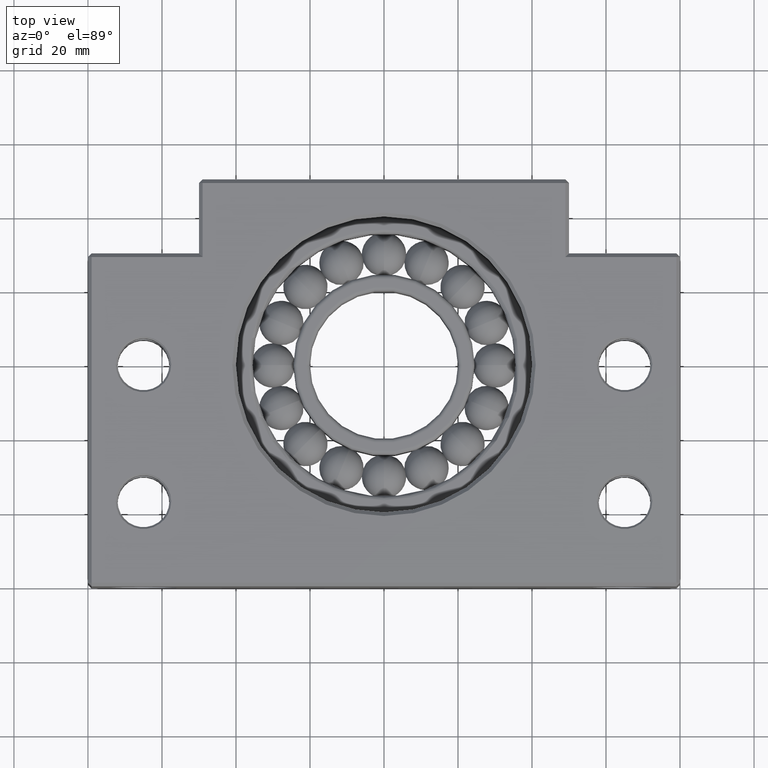
[diagram: clean part render]
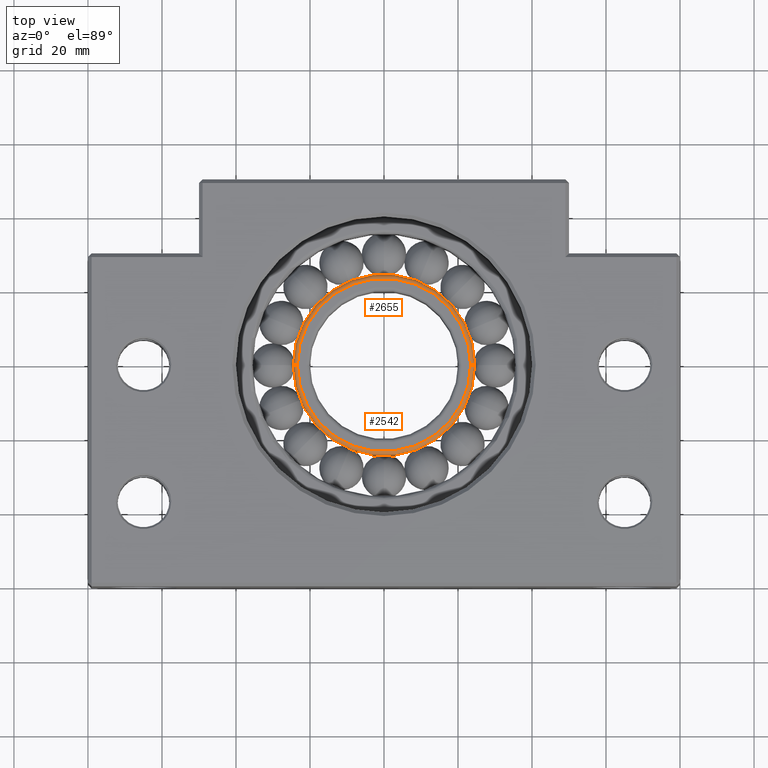
[diagram: same view with one multi-face feature highlighted, each face labeled with its STEP entity id]
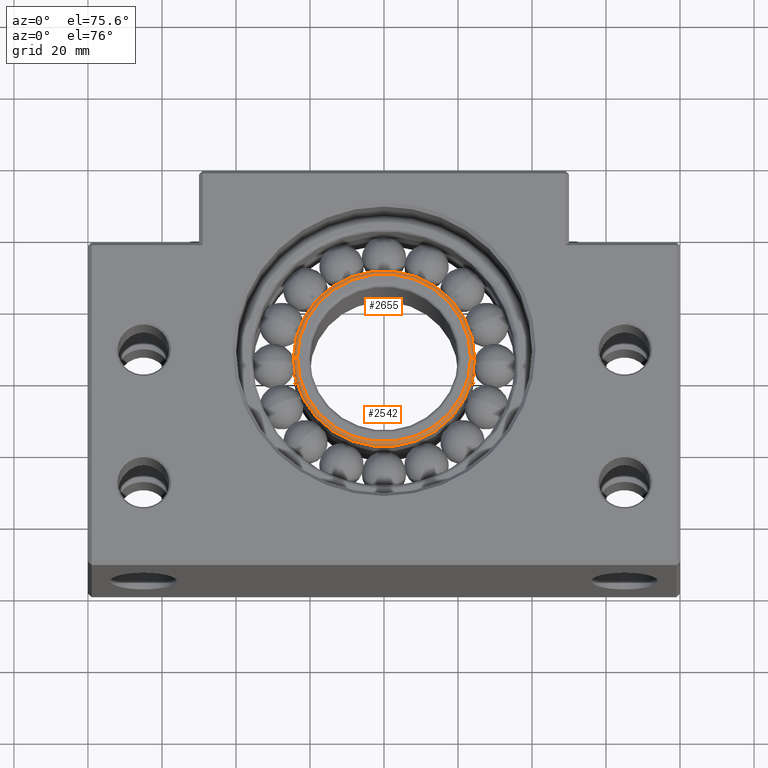
[diagram: same view with one multi-face feature highlighted, each face labeled with its STEP entity id]
A machine part, top view. The highlighted faces form ONE feature: a constant-radius fillet chain: 2 tangent blend faces with common blend radius 1.1 mm. The faces share edges in the B-rep.
A second angle (auxiliary view) of the same feature is appended — it is thin or edge-on in the first view.
Their STEP definitions:
[1] entity #2655 (Torus):
#2642 = EDGE_CURVE ( 'NONE', #2643, #2647, #3305, .T. ) ;
#2643 = VERTEX_POINT ( 'NONE', #3300 ) ;
#2644 = VERTEX_POINT ( 'NONE', #3299 ) ;
#2645 = EDGE_LOOP ( 'NONE', ( #2652, #2649, #2648, #2669 ) ) ;
#2646 = VERTEX_POINT ( 'NONE', #3298 ) ;
#2647 = VERTEX_POINT ( 'NONE', #3297 ) ;
#2648 = ORIENTED_EDGE ( 'NONE', *, *, #2642, .F. ) ;
#2649 = ORIENTED_EDGE ( 'NONE', *, *, #2650, .T. ) ;
#2650 = EDGE_CURVE ( 'NONE', #2644, #2647, #3296, .T. ) ;
#2651 = EDGE_CURVE ( 'NONE', #2646, #2644, #3291, .T. ) ;
#2652 = ORIENTED_EDGE ( 'NONE', *, *, #2651, .T. ) ;
#2655 = ADVANCED_FACE ( 'NONE', ( #3281 ), #3278, .T. ) ;
#2669 = ORIENTED_EDGE ( 'NONE', *, *, #2670, .F. ) ;
#2670 = EDGE_CURVE ( 'NONE', #2646, #2643, #3312, .T. ) ;
#3278 = TOROIDAL_SURFACE ( 'NONE', #3280, 23.40000000000000600, 1.099999999999998500 ) ;
#3280 = AXIS2_PLACEMENT_3D ( 'NONE', #3339, #3338, #3337 ) ;
#3281 = FACE_OUTER_BOUND ( 'NONE', #2645, .T. ) ;
#3287 = DIRECTION ( 'NONE',  ( 1.000000000000000000, 0.0000000000000000000, 0.0000000000000000000 ) ) ;
#3288 = DIRECTION ( 'NONE',  ( -0.0000000000000000000, -0.0000000000000000000, 1.000000000000000000 ) ) ;
#3289 = CARTESIAN_POINT ( 'NONE',  ( 9.143964685418714300E-015, 60.00000000000000000, 7.900000000000002100 ) ) ;
#3290 = AXIS2_PLACEMENT_3D ( 'NONE', #3289, #3288, #3287 ) ;
#3291 = CIRCLE ( 'NONE', #3290, 24.50000000000000000 ) ;
#3292 = DIRECTION ( 'NONE',  ( -1.000000000000000000, 0.0000000000000000000, 0.0000000000000000000 ) ) ;
#3293 = DIRECTION ( 'NONE',  ( 1.224606353822377300E-016, 1.000000000000000000, 0.0000000000000000000 ) ) ;
#3294 = CARTESIAN_POINT ( 'NONE',  ( -23.39999999999999500, 60.00000000000000000, 7.900000000000002100 ) ) ;
#3295 = AXIS2_PLACEMENT_3D ( 'NONE', #3294, #3293, #3292 ) ;
#3296 = CIRCLE ( 'NONE', #3295, 1.100000000000000300 ) ;
#3297 = CARTESIAN_POINT ( 'NONE',  ( -23.39999999999999500, 60.00000000000000000, 9.000000000000001800 ) ) ;
#3298 = CARTESIAN_POINT ( 'NONE',  ( 24.50000000000001100, 60.00000000000000000, 7.900000000000002100 ) ) ;
#3299 = CARTESIAN_POINT ( 'NONE',  ( -24.49999999999998900, 60.00000000000000000, 7.900000000000002100 ) ) ;
#3300 = CARTESIAN_POINT ( 'NONE',  ( 23.40000000000001300, 60.00000000000000000, 9.000000000000001800 ) ) ;
#3301 = DIRECTION ( 'NONE',  ( 1.000000000000000000, 0.0000000000000000000, 0.0000000000000000000 ) ) ;
#3302 = DIRECTION ( 'NONE',  ( -0.0000000000000000000, -0.0000000000000000000, 1.000000000000000000 ) ) ;
#3303 = CARTESIAN_POINT ( 'NONE',  ( 9.143964685418714300E-015, 60.00000000000000000, 9.000000000000001800 ) ) ;
#3304 = AXIS2_PLACEMENT_3D ( 'NONE', #3303, #3302, #3301 ) ;
#3305 = CIRCLE ( 'NONE', #3304, 23.40000000000000600 ) ;
#3308 = DIRECTION ( 'NONE',  ( 0.0000000000000000000, 0.0000000000000000000, -1.000000000000000000 ) ) ;
#3309 = DIRECTION ( 'NONE',  ( 0.0000000000000000000, -1.000000000000000000, 0.0000000000000000000 ) ) ;
#3310 = CARTESIAN_POINT ( 'NONE',  ( 23.40000000000001300, 60.00000000000000000, 7.900000000000002100 ) ) ;
#3311 = AXIS2_PLACEMENT_3D ( 'NONE', #3310, #3309, #3308 ) ;
#3312 = CIRCLE ( 'NONE', #3311, 1.099999999999998500 ) ;
#3337 = DIRECTION ( 'NONE',  ( 1.000000000000000000, 0.0000000000000000000, 0.0000000000000000000 ) ) ;
#3338 = DIRECTION ( 'NONE',  ( -0.0000000000000000000, -0.0000000000000000000, 1.000000000000000000 ) ) ;
#3339 = CARTESIAN_POINT ( 'NONE',  ( 9.143964685418714300E-015, 60.00000000000000000, 7.900000000000002100 ) ) ;
[2] entity #2542 (Torus):
#2525 = ORIENTED_EDGE ( 'NONE', *, *, #2650, .F. ) ;
#2526 = ORIENTED_EDGE ( 'NONE', *, *, #2537, .T. ) ;
#2537 = EDGE_CURVE ( 'NONE', #2644, #2646, #3118, .T. ) ;
#2538 = EDGE_LOOP ( 'NONE', ( #2525, #2526, #2576, #2578 ) ) ;
#2542 = ADVANCED_FACE ( 'NONE', ( #3108 ), #3105, .T. ) ;
#2576 = ORIENTED_EDGE ( 'NONE', *, *, #2670, .T. ) ;
#2577 = EDGE_CURVE ( 'NONE', #2647, #2643, #3184, .T. ) ;
#2578 = ORIENTED_EDGE ( 'NONE', *, *, #2577, .F. ) ;
#2643 = VERTEX_POINT ( 'NONE', #3300 ) ;
#2644 = VERTEX_POINT ( 'NONE', #3299 ) ;
#2646 = VERTEX_POINT ( 'NONE', #3298 ) ;
#2647 = VERTEX_POINT ( 'NONE', #3297 ) ;
#2650 = EDGE_CURVE ( 'NONE', #2644, #2647, #3296, .T. ) ;
#2670 = EDGE_CURVE ( 'NONE', #2646, #2643, #3312, .T. ) ;
#3102 = DIRECTION ( 'NONE',  ( 1.000000000000000000, 0.0000000000000000000, 0.0000000000000000000 ) ) ;
#3103 = DIRECTION ( 'NONE',  ( -0.0000000000000000000, -0.0000000000000000000, 1.000000000000000000 ) ) ;
#3104 = AXIS2_PLACEMENT_3D ( 'NONE', #3107, #3103, #3102 ) ;
#3105 = TOROIDAL_SURFACE ( 'NONE', #3104, 23.40000000000000600, 1.099999999999998500 ) ;
#3107 = CARTESIAN_POINT ( 'NONE',  ( 9.143964685418714300E-015, 60.00000000000000000, 7.900000000000002100 ) ) ;
#3108 = FACE_OUTER_BOUND ( 'NONE', #2538, .T. ) ;
#3114 = DIRECTION ( 'NONE',  ( 1.000000000000000000, 0.0000000000000000000, 0.0000000000000000000 ) ) ;
#3115 = DIRECTION ( 'NONE',  ( -0.0000000000000000000, -0.0000000000000000000, 1.000000000000000000 ) ) ;
#3116 = CARTESIAN_POINT ( 'NONE',  ( 9.143964685418714300E-015, 60.00000000000000000, 7.900000000000002100 ) ) ;
#3117 = AXIS2_PLACEMENT_3D ( 'NONE', #3116, #3115, #3114 ) ;
#3118 = CIRCLE ( 'NONE', #3117, 24.50000000000000000 ) ;
#3177 = DIRECTION ( 'NONE',  ( 1.000000000000000000, 0.0000000000000000000, 0.0000000000000000000 ) ) ;
#3178 = DIRECTION ( 'NONE',  ( -0.0000000000000000000, -0.0000000000000000000, 1.000000000000000000 ) ) ;
#3179 = CARTESIAN_POINT ( 'NONE',  ( 9.143964685418714300E-015, 60.00000000000000000, 9.000000000000001800 ) ) ;
#3180 = AXIS2_PLACEMENT_3D ( 'NONE', #3179, #3178, #3177 ) ;
#3184 = CIRCLE ( 'NONE', #3180, 23.40000000000000600 ) ;
#3292 = DIRECTION ( 'NONE',  ( -1.000000000000000000, 0.0000000000000000000, 0.0000000000000000000 ) ) ;
#3293 = DIRECTION ( 'NONE',  ( 1.224606353822377300E-016, 1.000000000000000000, 0.0000000000000000000 ) ) ;
#3294 = CARTESIAN_POINT ( 'NONE',  ( -23.39999999999999500, 60.00000000000000000, 7.900000000000002100 ) ) ;
#3295 = AXIS2_PLACEMENT_3D ( 'NONE', #3294, #3293, #3292 ) ;
#3296 = CIRCLE ( 'NONE', #3295, 1.100000000000000300 ) ;
#3297 = CARTESIAN_POINT ( 'NONE',  ( -23.39999999999999500, 60.00000000000000000, 9.000000000000001800 ) ) ;
#3298 = CARTESIAN_POINT ( 'NONE',  ( 24.50000000000001100, 60.00000000000000000, 7.900000000000002100 ) ) ;
#3299 = CARTESIAN_POINT ( 'NONE',  ( -24.49999999999998900, 60.00000000000000000, 7.900000000000002100 ) ) ;
#3300 = CARTESIAN_POINT ( 'NONE',  ( 23.40000000000001300, 60.00000000000000000, 9.000000000000001800 ) ) ;
#3308 = DIRECTION ( 'NONE',  ( 0.0000000000000000000, 0.0000000000000000000, -1.000000000000000000 ) ) ;
#3309 = DIRECTION ( 'NONE',  ( 0.0000000000000000000, -1.000000000000000000, 0.0000000000000000000 ) ) ;
#3310 = CARTESIAN_POINT ( 'NONE',  ( 23.40000000000001300, 60.00000000000000000, 7.900000000000002100 ) ) ;
#3311 = AXIS2_PLACEMENT_3D ( 'NONE', #3310, #3309, #3308 ) ;
#3312 = CIRCLE ( 'NONE', #3311, 1.099999999999998500 ) ;